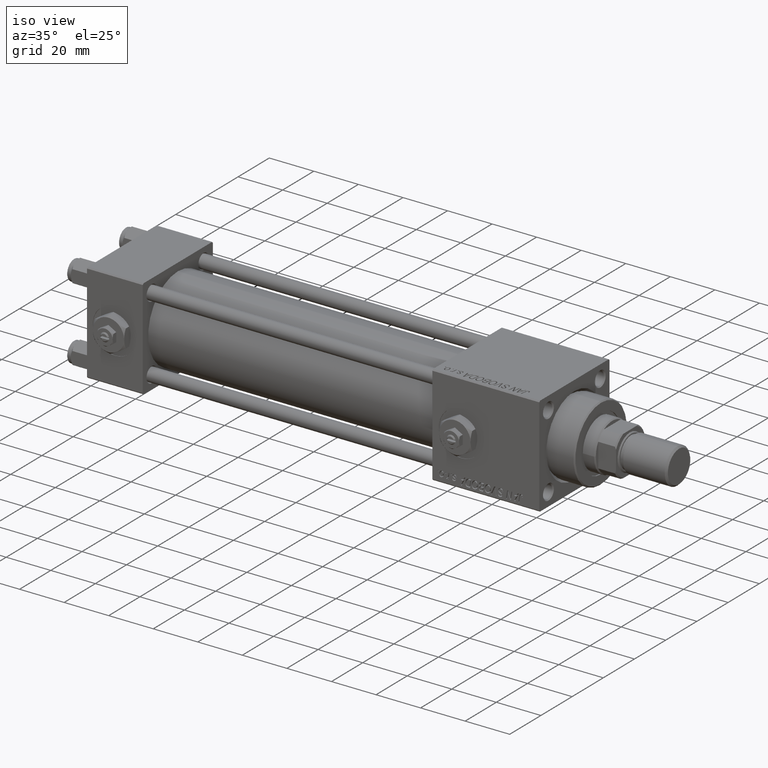
[diagram: clean part render]
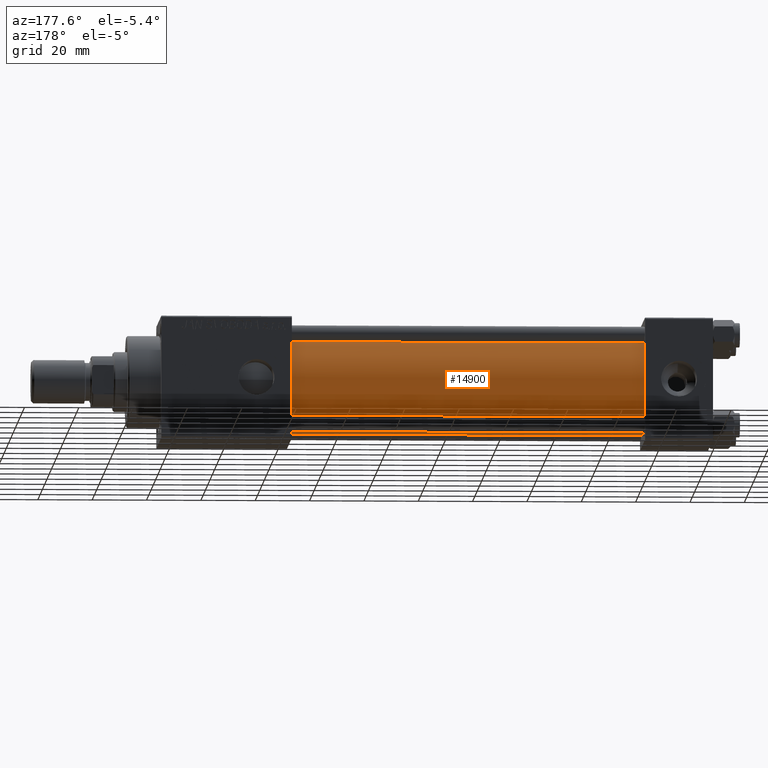
[diagram: tour spotlight — one face highlighted and labeled with its STEP entity id]
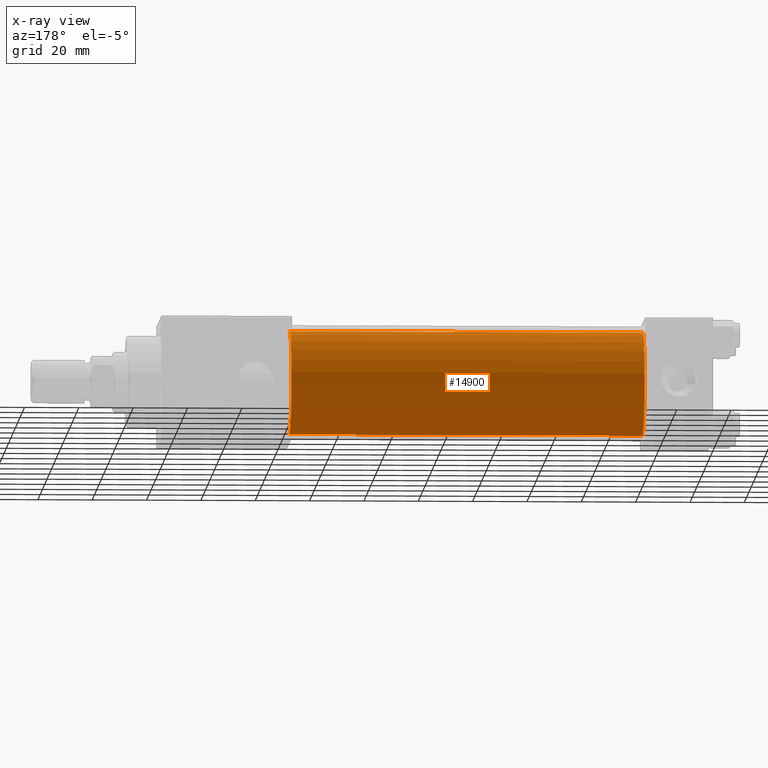
[diagram: x-ray of the same camera — body ghosted, this tour face saturated]
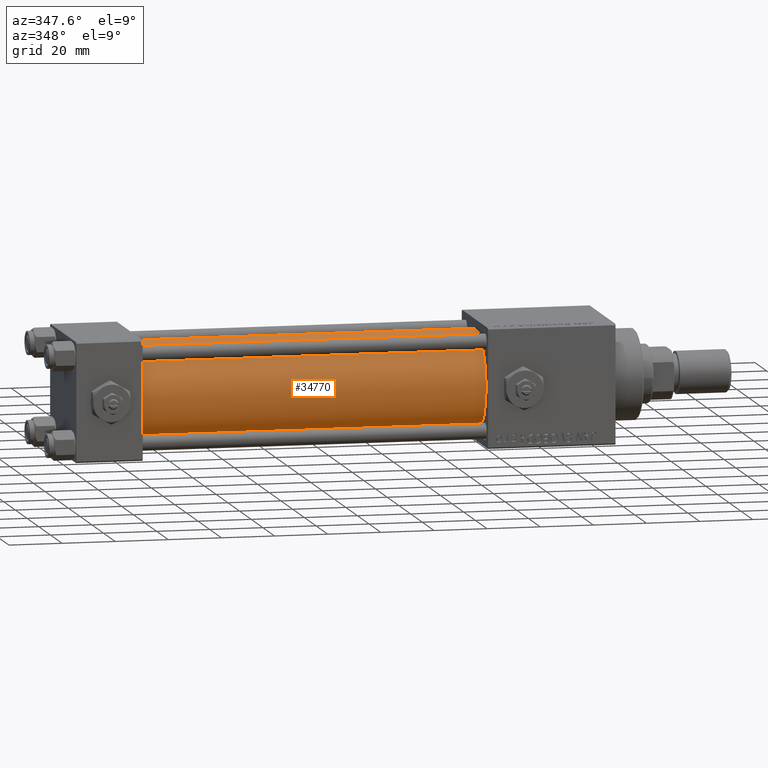
[diagram: tour spotlight — one face highlighted and labeled with its STEP entity id]
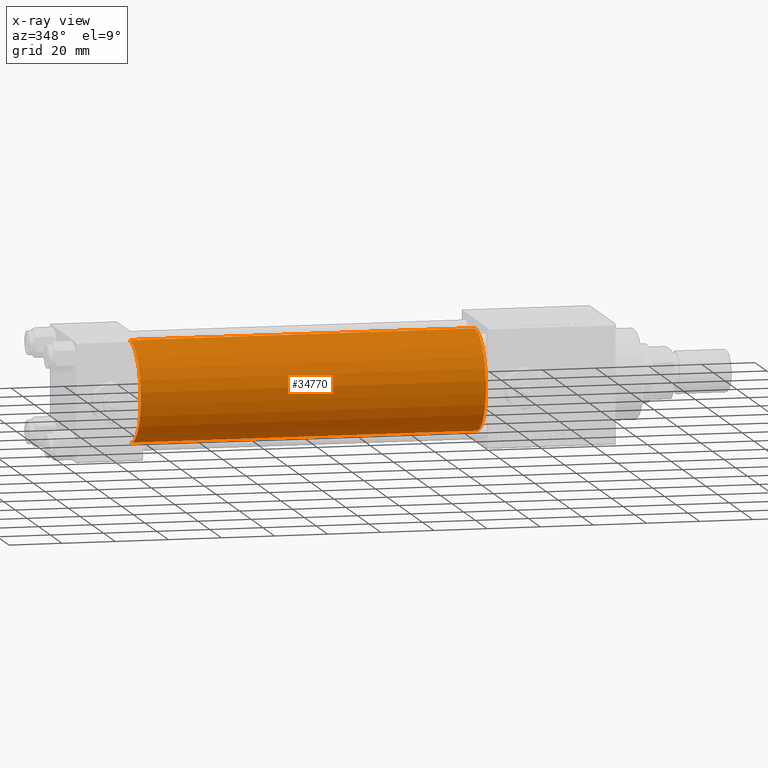
[diagram: x-ray of the same camera — body ghosted, this tour face saturated]
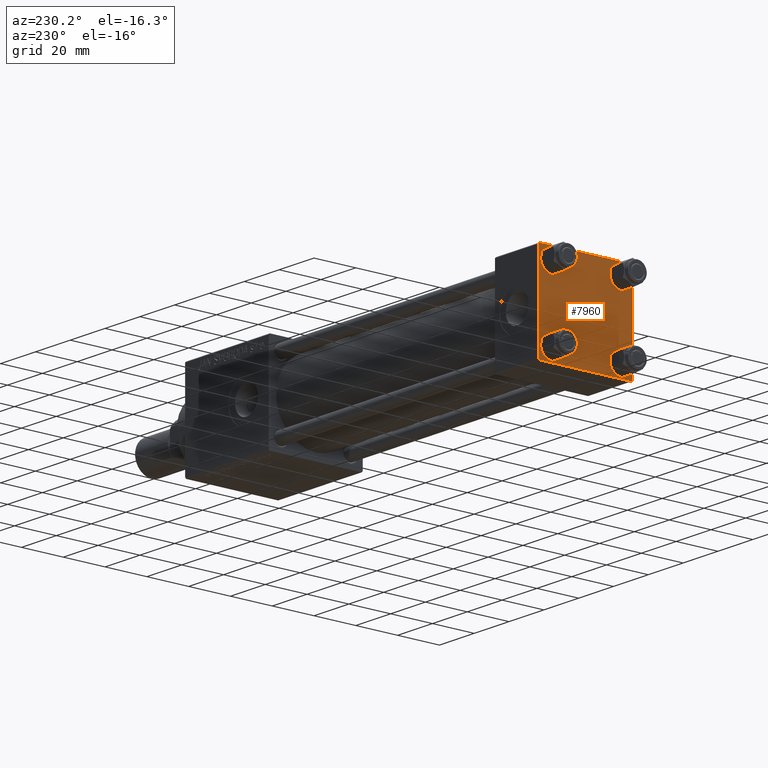
[diagram: tour spotlight — one face highlighted and labeled with its STEP entity id]
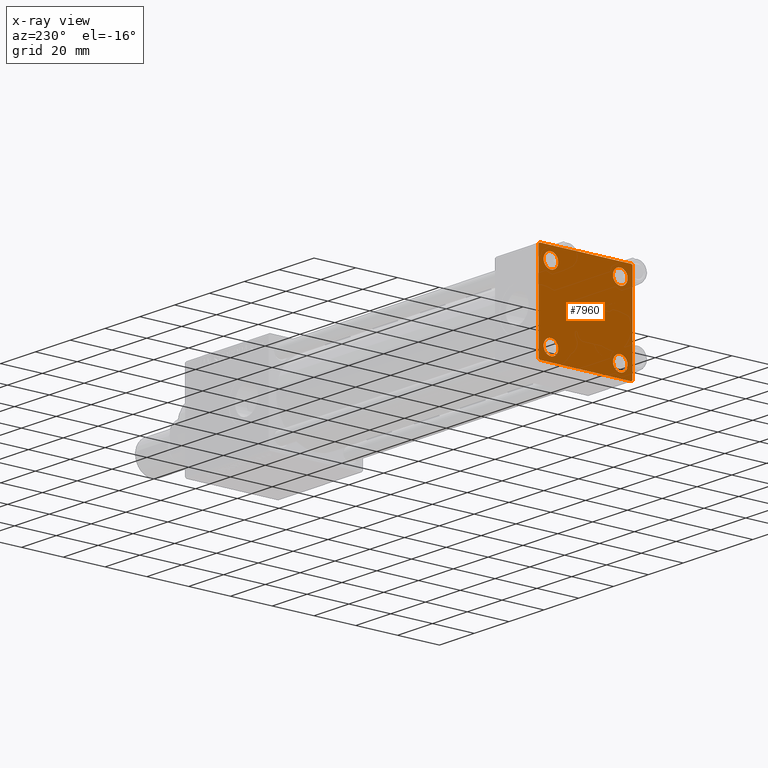
[diagram: x-ray of the same camera — body ghosted, this tour face saturated]
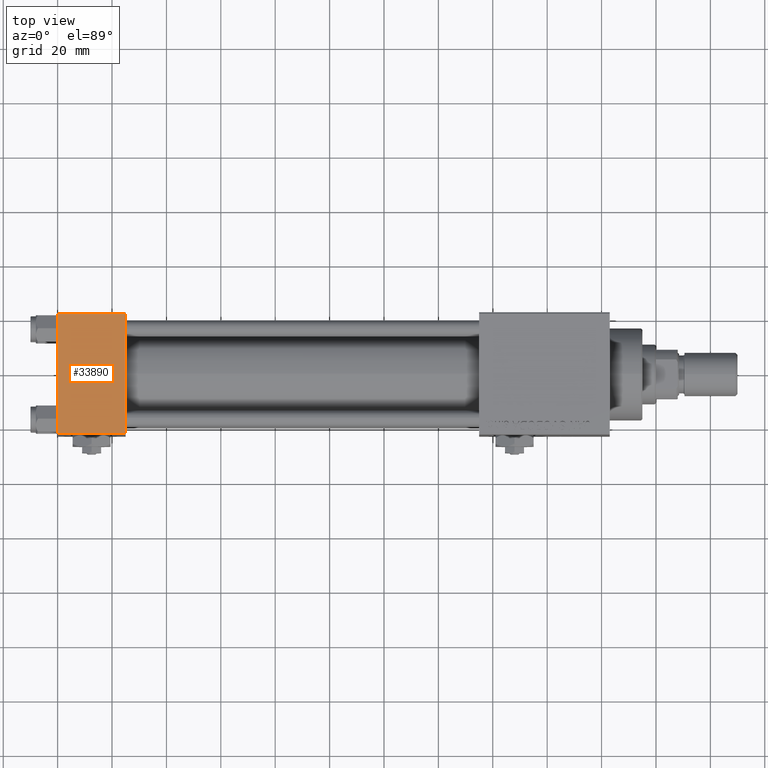
[diagram: tour spotlight — one face highlighted and labeled with its STEP entity id]
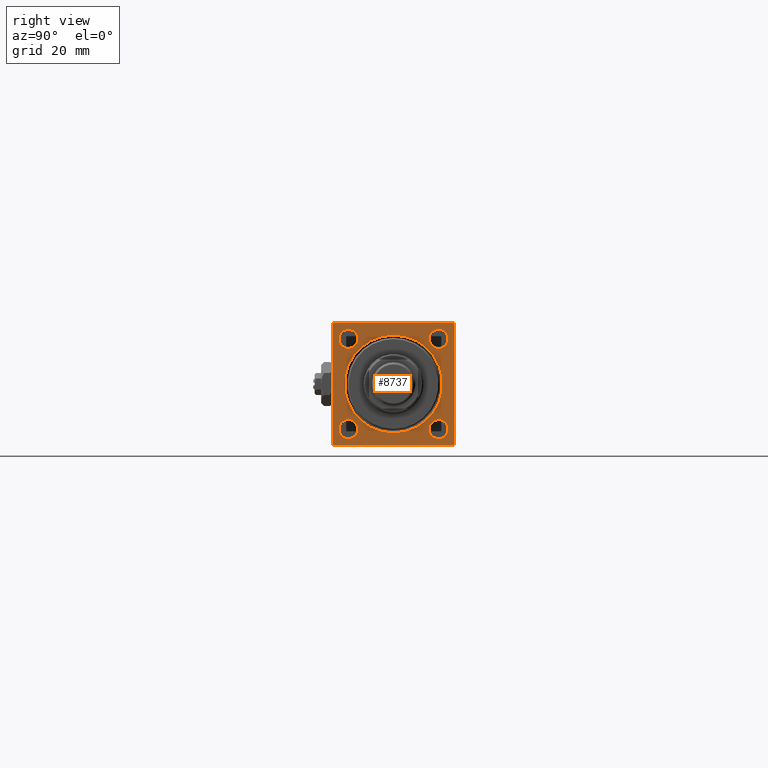
[diagram: tour spotlight — one face highlighted and labeled with its STEP entity id]
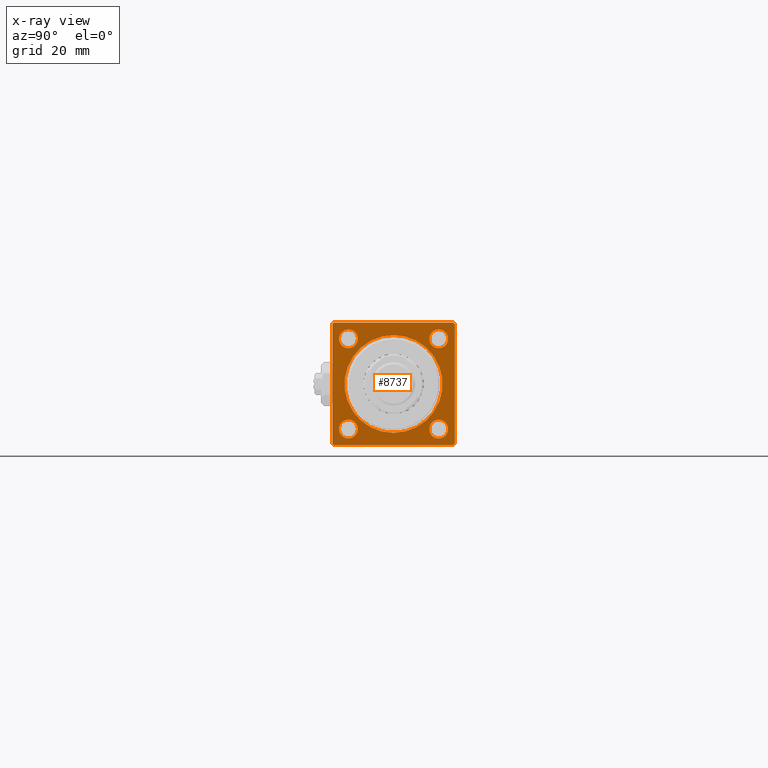
[diagram: x-ray of the same camera — body ghosted, this tour face saturated]
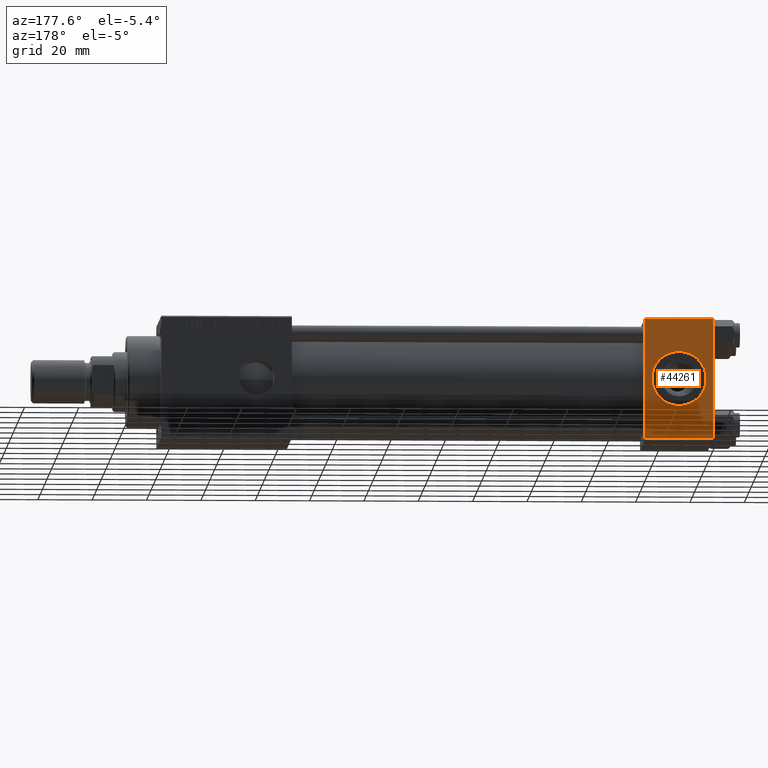
[diagram: tour spotlight — one face highlighted and labeled with its STEP entity id]
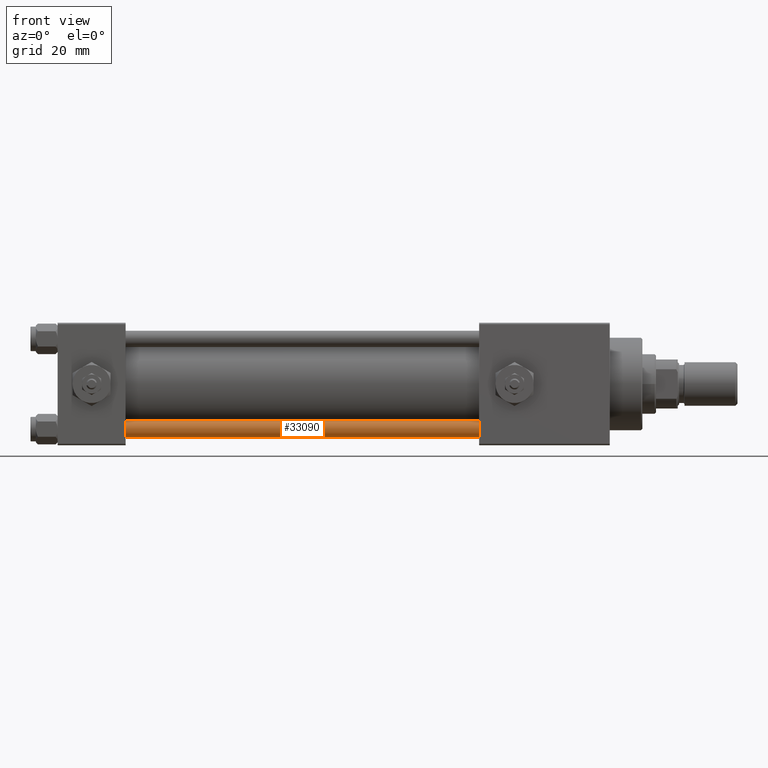
[diagram: tour spotlight — one face highlighted and labeled with its STEP entity id]
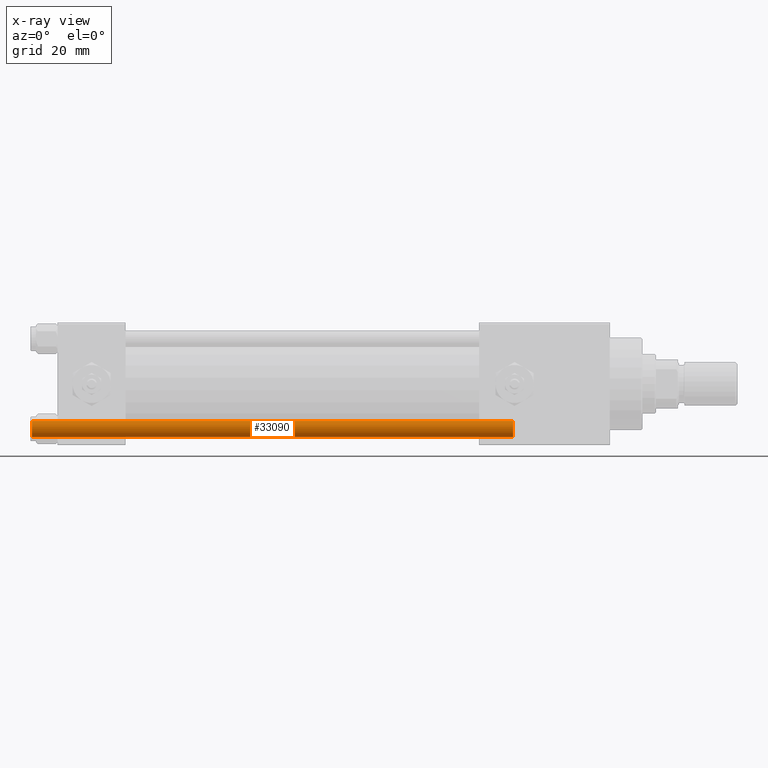
[diagram: x-ray of the same camera — body ghosted, this tour face saturated]
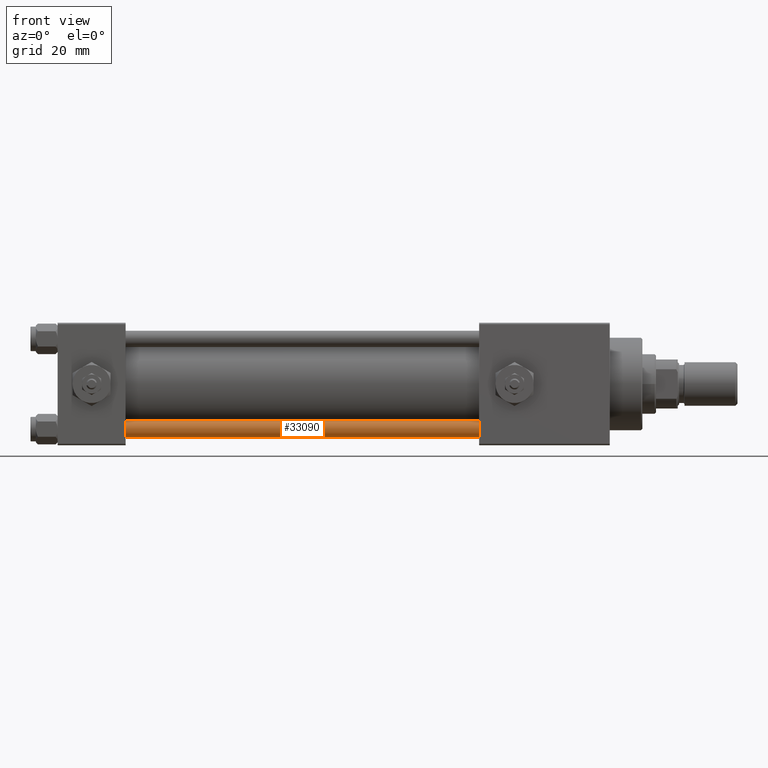
[diagram: tour spotlight — one face highlighted and labeled with its STEP entity id]
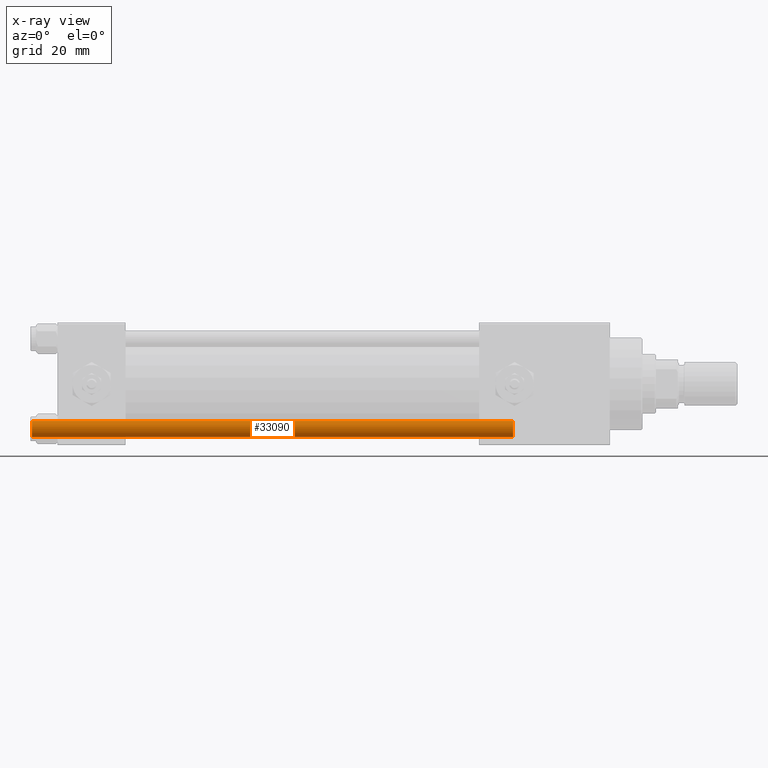
[diagram: x-ray of the same camera — body ghosted, this tour face saturated]
A machine part: a face-by-face anatomy tour. The part has 1262 B-rep faces; the first image is the clean iso view, then the 8 largest visible faces are spotlighted one at a time (largest first), each with its STEP entity span.

Face 1 — auxiliary view, entity #14900. An x-ray twin of the same camera follows (body ghosted, this face saturated) — the face is partly hidden behind the body. In plain terms, the highlighted cylindrical surface (partial cylindrical patch) has radius 19 mm, axis along (-1, -0, -0).
Definition (entity closure, byte-faithful):
#85 = AXIS2_PLACEMENT_3D ( 'NONE', #44434, #16227, #7715 ) ;
#4461 = VERTEX_POINT ( 'NONE', #4507 ) ;
#4507 = CARTESIAN_POINT ( 'NONE',  ( 155.0000000000000000, -2.752562955852396712E-16, -19.00000000000000000 ) ) ;
#6038 = DIRECTION ( 'NONE',  ( -1.000000000000000000, -0.000000000000000000, -0.000000000000000000 ) ) ;
#7715 = DIRECTION ( 'NONE',  ( 0.000000000000000000, 0.000000000000000000, 1.000000000000000000 ) ) ;
#7952 = VERTEX_POINT ( 'NONE', #40207 ) ;
#8587 = ORIENTED_EDGE ( 'NONE', *, *, #23134, .T. ) ;
#9374 = VERTEX_POINT ( 'NONE', #42926 ) ;
#12213 = EDGE_LOOP ( 'NONE', ( #42013, #52071, #8587, #27853 ) ) ;
#12745 = DIRECTION ( 'NONE',  ( 0.000000000000000000, 0.000000000000000000, -1.000000000000000000 ) ) ;
#13572 = VECTOR ( 'NONE', #22670, 1000.000000000000000 ) ;
#14384 = AXIS2_PLACEMENT_3D ( 'NONE', #38131, #34147, #46385 ) ;
#14900 = ADVANCED_FACE ( 'NONE', ( #30146 ), #17375, .T. ) ;
#16015 = CARTESIAN_POINT ( 'NONE',  ( 24.99999999999999289, -2.602085213965210642E-15, 19.00000000000000000 ) ) ;
#16227 = DIRECTION ( 'NONE',  ( 1.000000000000000000, -0.000000000000000000, 0.000000000000000000 ) ) ;
#17177 = AXIS2_PLACEMENT_3D ( 'NONE', #24729, #36963, #12745 ) ;
#17375 = CYLINDRICAL_SURFACE ( 'NONE', #14384, 19.00000000000000000 ) ;
#18018 = CIRCLE ( 'NONE', #17177, 19.00000000000000000 ) ;
#20312 = VERTEX_POINT ( 'NONE', #16015 ) ;
#22670 = DIRECTION ( 'NONE',  ( -1.000000000000000000, -0.000000000000000000, -0.000000000000000000 ) ) ;
#23134 = EDGE_CURVE ( 'NONE', #9374, #20312, #29840, .T. ) ;
#24729 = CARTESIAN_POINT ( 'NONE',  ( 155.0000000000000000, -2.602085213965210642E-15, 0.000000000000000000 ) ) ;
#26269 = LINE ( 'NONE', #42498, #39441 ) ;
#27853 = ORIENTED_EDGE ( 'NONE', *, *, #50413, .F. ) ;
#29545 = EDGE_CURVE ( 'NONE', #4461, #7952, #18018, .T. ) ;
#29840 = CIRCLE ( 'NONE', #85, 19.00000000000000000 ) ;
#30146 = FACE_OUTER_BOUND ( 'NONE', #12213, .T. ) ;
#31725 = LINE ( 'NONE', #35181, #13572 ) ;
#33943 = EDGE_CURVE ( 'NONE', #4461, #9374, #26269, .T. ) ;
#34147 = DIRECTION ( 'NONE',  ( -1.000000000000000000, -0.000000000000000000, -0.000000000000000000 ) ) ;
#35181 = CARTESIAN_POINT ( 'NONE',  ( 155.0000000000000000, -2.602085213965210642E-15, 19.00000000000000000 ) ) ;
#36963 = DIRECTION ( 'NONE',  ( 1.000000000000000000, 0.000000000000000000, 0.000000000000000000 ) ) ;
#38131 = CARTESIAN_POINT ( 'NONE',  ( 155.0000000000000000, -2.602085213965210642E-15, 0.000000000000000000 ) ) ;
#39441 = VECTOR ( 'NONE', #6038, 1000.000000000000000 ) ;
#40207 = CARTESIAN_POINT ( 'NONE',  ( 155.0000000000000000, -2.602085213965210642E-15, 19.00000000000000000 ) ) ;
#42013 = ORIENTED_EDGE ( 'NONE', *, *, #29545, .F. ) ;
#42498 = CARTESIAN_POINT ( 'NONE',  ( 155.0000000000000000, -2.752562955852396712E-16, -19.00000000000000000 ) ) ;
#42926 = CARTESIAN_POINT ( 'NONE',  ( 24.99999999999999289, -2.752562955852396712E-16, -19.00000000000000000 ) ) ;
#44434 = CARTESIAN_POINT ( 'NONE',  ( 24.99999999999999289, -2.602085213965210642E-15, 0.000000000000000000 ) ) ;
#46385 = DIRECTION ( 'NONE',  ( 0.000000000000000000, 0.000000000000000000, 1.000000000000000000 ) ) ;
#50413 = EDGE_CURVE ( 'NONE', #7952, #20312, #31725, .T. ) ;
#52071 = ORIENTED_EDGE ( 'NONE', *, *, #33943, .T. ) ;

Face 2 — auxiliary view, entity #34770. An x-ray twin of the same camera follows (body ghosted, this face saturated) — the face is partly hidden behind the body. In plain terms, the highlighted cylindrical surface (partial cylindrical patch) has radius 19 mm, axis along (-1, -0, -0).
Definition (entity closure, byte-faithful):
#385 = AXIS2_PLACEMENT_3D ( 'NONE', #49616, #651, #44581 ) ;
#651 = DIRECTION ( 'NONE',  ( -1.000000000000000000, -0.000000000000000000, -0.000000000000000000 ) ) ;
#4187 = EDGE_LOOP ( 'NONE', ( #5502, #17599, #36821, #18349 ) ) ;
#4461 = VERTEX_POINT ( 'NONE', #4507 ) ;
#4507 = CARTESIAN_POINT ( 'NONE',  ( 155.0000000000000000, -2.752562955852396712E-16, -19.00000000000000000 ) ) ;
#5502 = ORIENTED_EDGE ( 'NONE', *, *, #33943, .F. ) ;
#6038 = DIRECTION ( 'NONE',  ( -1.000000000000000000, -0.000000000000000000, -0.000000000000000000 ) ) ;
#7952 = VERTEX_POINT ( 'NONE', #40207 ) ;
#8578 = AXIS2_PLACEMENT_3D ( 'NONE', #29931, #22215, #50432 ) ;
#9374 = VERTEX_POINT ( 'NONE', #42926 ) ;
#13572 = VECTOR ( 'NONE', #22670, 1000.000000000000000 ) ;
#15060 = AXIS2_PLACEMENT_3D ( 'NONE', #19428, #30886, #27674 ) ;
#16015 = CARTESIAN_POINT ( 'NONE',  ( 24.99999999999999289, -2.602085213965210642E-15, 19.00000000000000000 ) ) ;
#17599 = ORIENTED_EDGE ( 'NONE', *, *, #17813, .F. ) ;
#17813 = EDGE_CURVE ( 'NONE', #7952, #4461, #21292, .T. ) ;
#18349 = ORIENTED_EDGE ( 'NONE', *, *, #41156, .T. ) ;
#19428 = CARTESIAN_POINT ( 'NONE',  ( 24.99999999999999289, -2.602085213965210642E-15, 0.000000000000000000 ) ) ;
#20312 = VERTEX_POINT ( 'NONE', #16015 ) ;
#21292 = CIRCLE ( 'NONE', #8578, 19.00000000000000000 ) ;
#22215 = DIRECTION ( 'NONE',  ( 1.000000000000000000, 0.000000000000000000, 0.000000000000000000 ) ) ;
#22670 = DIRECTION ( 'NONE',  ( -1.000000000000000000, -0.000000000000000000, -0.000000000000000000 ) ) ;
#24631 = CYLINDRICAL_SURFACE ( 'NONE', #385, 19.00000000000000000 ) ;
#26269 = LINE ( 'NONE', #42498, #39441 ) ;
#27674 = DIRECTION ( 'NONE',  ( 0.000000000000000000, 0.000000000000000000, 1.000000000000000000 ) ) ;
#29931 = CARTESIAN_POINT ( 'NONE',  ( 155.0000000000000000, -2.602085213965210642E-15, 0.000000000000000000 ) ) ;
#30886 = DIRECTION ( 'NONE',  ( 1.000000000000000000, -0.000000000000000000, 0.000000000000000000 ) ) ;
#31725 = LINE ( 'NONE', #35181, #13572 ) ;
#33943 = EDGE_CURVE ( 'NONE', #4461, #9374, #26269, .T. ) ;
#34770 = ADVANCED_FACE ( 'NONE', ( #37125 ), #24631, .T. ) ;
#35181 = CARTESIAN_POINT ( 'NONE',  ( 155.0000000000000000, -2.602085213965210642E-15, 19.00000000000000000 ) ) ;
#36821 = ORIENTED_EDGE ( 'NONE', *, *, #50413, .T. ) ;
#37057 = CIRCLE ( 'NONE', #15060, 19.00000000000000000 ) ;
#37125 = FACE_OUTER_BOUND ( 'NONE', #4187, .T. ) ;
#39441 = VECTOR ( 'NONE', #6038, 1000.000000000000000 ) ;
#40207 = CARTESIAN_POINT ( 'NONE',  ( 155.0000000000000000, -2.602085213965210642E-15, 19.00000000000000000 ) ) ;
#41156 = EDGE_CURVE ( 'NONE', #20312, #9374, #37057, .T. ) ;
#42498 = CARTESIAN_POINT ( 'NONE',  ( 155.0000000000000000, -2.752562955852396712E-16, -19.00000000000000000 ) ) ;
#42926 = CARTESIAN_POINT ( 'NONE',  ( 24.99999999999999289, -2.752562955852396712E-16, -19.00000000000000000 ) ) ;
#44581 = DIRECTION ( 'NONE',  ( 0.000000000000000000, 0.000000000000000000, 1.000000000000000000 ) ) ;
#49616 = CARTESIAN_POINT ( 'NONE',  ( 155.0000000000000000, -2.602085213965210642E-15, 0.000000000000000000 ) ) ;
#50413 = EDGE_CURVE ( 'NONE', #7952, #20312, #31725, .T. ) ;
#50432 = DIRECTION ( 'NONE',  ( 0.000000000000000000, 0.000000000000000000, -1.000000000000000000 ) ) ;

Face 3 — auxiliary view, entity #7960. An x-ray twin of the same camera follows (body ghosted, this face saturated) — the face is partly hidden behind the body. In plain terms, the highlighted planar face has unit normal (-1, 0, 0).
Definition (entity closure, byte-faithful):
#75 = VECTOR ( 'NONE', #38165, 1000.000000000000000 ) ;
#342 = DIRECTION ( 'NONE',  ( 0.000000000000000000, 0.000000000000000000, 1.000000000000000000 ) ) ;
#369 = DIRECTION ( 'NONE',  ( 0.000000000000000000, -1.000000000000000000, -7.709882115452476934E-17 ) ) ;
#732 = ORIENTED_EDGE ( 'NONE', *, *, #27580, .T. ) ;
#853 = ORIENTED_EDGE ( 'NONE', *, *, #26945, .T. ) ;
#1427 = LINE ( 'NONE', #17158, #75 ) ;
#2073 = DIRECTION ( 'NONE',  ( -0.000000000000000000, -0.7071067811865426878, -0.7071067811865524577 ) ) ;
#2944 = CARTESIAN_POINT ( 'NONE',  ( 0.000000000000000000, 0.000000000000000000, 0.000000000000000000 ) ) ;
#3340 = AXIS2_PLACEMENT_3D ( 'NONE', #28631, #25156, #21160 ) ;
#3453 = VERTEX_POINT ( 'NONE', #24849 ) ;
#3712 = CARTESIAN_POINT ( 'NONE',  ( 0.000000000000000000, 21.99999999999999289, 22.50000000000000355 ) ) ;
#3775 = LINE ( 'NONE', #43702, #32563 ) ;
#3777 = CARTESIAN_POINT ( 'NONE',  ( 0.000000000000000000, -16.59999999999999076, 13.10000000000001030 ) ) ;
#5757 = DIRECTION ( 'NONE',  ( 0.000000000000000000, 0.7071067811865474617, -0.7071067811865474617 ) ) ;
#5898 = CIRCLE ( 'NONE', #52630, 3.499999999999996003 ) ;
#5910 = VECTOR ( 'NONE', #369, 1000.000000000000000 ) ;
#6080 = LINE ( 'NONE', #35088, #45079 ) ;
#7023 = VERTEX_POINT ( 'NONE', #30371 ) ;
#7519 = DIRECTION ( 'NONE',  ( -0.000000000000000000, 0.7071067811865525687, 0.7071067811865425767 ) ) ;
#7960 = ADVANCED_FACE ( 'NONE', ( #19972, #35426, #47665, #15722, #39418 ), #35163, .T. ) ;
#9157 = LINE ( 'NONE', #25379, #5910 ) ;
#10374 = LINE ( 'NONE', #51604, #42057 ) ;
#10895 = CARTESIAN_POINT ( 'NONE',  ( 0.000000000000000000, 22.50000000000000000, 22.50000000000000355 ) ) ;
#11528 = EDGE_CURVE ( 'NONE', #26114, #7023, #17817, .T. ) ;
#11675 = DIRECTION ( 'NONE',  ( 0.000000000000000000, 0.000000000000000000, -1.000000000000000000 ) ) ;
#12044 = EDGE_LOOP ( 'NONE', ( #48130, #20227 ) ) ;
#12204 = LINE ( 'NONE', #24443, #28473 ) ;
#12272 = EDGE_CURVE ( 'NONE', #41691, #25873, #41519, .T. ) ;
#14306 = EDGE_CURVE ( 'NONE', #44782, #20568, #9157, .T. ) ;
#14578 = DIRECTION ( 'NONE',  ( 0.000000000000000000, 0.000000000000000000, 1.000000000000000000 ) ) ;
#15722 = FACE_BOUND ( 'NONE', #35476, .T. ) ;
#16066 = CARTESIAN_POINT ( 'NONE',  ( 0.000000000000000000, 16.59999999999999787, -16.60000000000000497 ) ) ;
#16649 = EDGE_CURVE ( 'NONE', #7023, #51586, #6080, .T. ) ;
#17158 = CARTESIAN_POINT ( 'NONE',  ( 0.000000000000000000, -22.25000000000014566, -22.24999999999984013 ) ) ;
#17817 = LINE ( 'NONE', #10895, #46568 ) ;
#18360 = CARTESIAN_POINT ( 'NONE',  ( 0.000000000000000000, -21.99999999999997868, 22.50000000000000000 ) ) ;
#18558 = AXIS2_PLACEMENT_3D ( 'NONE', #23729, #48996, #20263 ) ;
#18793 = CARTESIAN_POINT ( 'NONE',  ( 0.000000000000000000, -16.59999999999999076, -16.60000000000000853 ) ) ;
#18963 = CARTESIAN_POINT ( 'NONE',  ( 0.000000000000000000, -21.99999999999997158, -22.50000000000000711 ) ) ;
#18980 = ORIENTED_EDGE ( 'NONE', *, *, #48138, .T. ) ;
#19086 = CARTESIAN_POINT ( 'NONE',  ( 0.000000000000000000, 22.50000000000000000, 21.99999999999999645 ) ) ;
#19404 = AXIS2_PLACEMENT_3D ( 'NONE', #2944, #52182, #23975 ) ;
#19972 = FACE_BOUND ( 'NONE', #12044, .T. ) ;
#20227 = ORIENTED_EDGE ( 'NONE', *, *, #12272, .T. ) ;
#20263 = DIRECTION ( 'NONE',  ( 0.000000000000000000, 0.000000000000000000, 1.000000000000000000 ) ) ;
#20278 = VERTEX_POINT ( 'NONE', #42505 ) ;
#20568 = VERTEX_POINT ( 'NONE', #18360 ) ;
#20963 = EDGE_CURVE ( 'NONE', #50544, #3453, #39115, .T. ) ;
#21160 = DIRECTION ( 'NONE',  ( 0.000000000000000000, 0.000000000000000000, 1.000000000000000000 ) ) ;
#21333 = CARTESIAN_POINT ( 'NONE',  ( 0.000000000000000000, -16.59999999999999076, -13.10000000000001030 ) ) ;
#21423 = ORIENTED_EDGE ( 'NONE', *, *, #35568, .F. ) ;
#22270 = ORIENTED_EDGE ( 'NONE', *, *, #20963, .T. ) ;
#23196 = AXIS2_PLACEMENT_3D ( 'NONE', #27084, #51559, #43305 ) ;
#23729 = CARTESIAN_POINT ( 'NONE',  ( 0.000000000000000000, -16.59999999999999076, 16.60000000000000853 ) ) ;
#23750 = CIRCLE ( 'NONE', #3340, 3.499999999999996003 ) ;
#23975 = DIRECTION ( 'NONE',  ( -0.000000000000000000, 0.000000000000000000, 1.000000000000000000 ) ) ;
#24323 = CIRCLE ( 'NONE', #48148, 3.499999999999996003 ) ;
#24443 = CARTESIAN_POINT ( 'NONE',  ( 0.000000000000000000, -22.50000000000000000, 22.50000000000000000 ) ) ;
#24482 = AXIS2_PLACEMENT_3D ( 'NONE', #30889, #47117, #26888 ) ;
#24813 = DIRECTION ( 'NONE',  ( 0.000000000000000000, 0.000000000000000000, 1.000000000000000000 ) ) ;
#24849 = CARTESIAN_POINT ( 'NONE',  ( 0.000000000000000000, 16.59999999999999787, -20.10000000000000142 ) ) ;
#25156 = DIRECTION ( 'NONE',  ( 1.000000000000000000, -0.000000000000000000, 0.000000000000000000 ) ) ;
#25379 = CARTESIAN_POINT ( 'NONE',  ( 0.000000000000000000, 22.50000000000000000, 22.50000000000000355 ) ) ;
#25873 = VERTEX_POINT ( 'NONE', #43989 ) ;
#26114 = VERTEX_POINT ( 'NONE', #19086 ) ;
#26176 = CIRCLE ( 'NONE', #24482, 3.499999999999996003 ) ;
#26315 = EDGE_LOOP ( 'NONE', ( #35003, #47769, #39398, #36685, #21423, #732, #39994, #50799 ) ) ;
#26558 = CARTESIAN_POINT ( 'NONE',  ( 0.000000000000000000, 16.59999999999999787, -16.60000000000000497 ) ) ;
#26608 = DIRECTION ( 'NONE',  ( 0.000000000000000000, -1.000000000000000000, -2.312964634635742957E-16 ) ) ;
#26749 = VERTEX_POINT ( 'NONE', #27729 ) ;
#26888 = DIRECTION ( 'NONE',  ( 0.000000000000000000, 0.000000000000000000, 1.000000000000000000 ) ) ;
#26945 = EDGE_CURVE ( 'NONE', #38431, #52579, #27457, .T. ) ;
#27084 = CARTESIAN_POINT ( 'NONE',  ( 0.000000000000000000, -16.59999999999999076, -16.60000000000000853 ) ) ;
#27318 = EDGE_LOOP ( 'NONE', ( #853, #18980 ) ) ;
#27457 = CIRCLE ( 'NONE', #23196, 3.499999999999996003 ) ;
#27580 = EDGE_CURVE ( 'NONE', #20278, #20568, #3775, .T. ) ;
#27729 = CARTESIAN_POINT ( 'NONE',  ( 0.000000000000000000, 16.59999999999999787, 13.10000000000000675 ) ) ;
#27909 = VERTEX_POINT ( 'NONE', #39931 ) ;
#28473 = VECTOR ( 'NONE', #11675, 1000.000000000000000 ) ;
#28631 = CARTESIAN_POINT ( 'NONE',  ( 0.000000000000000000, -16.59999999999999076, 16.60000000000000853 ) ) ;
#28744 = ORIENTED_EDGE ( 'NONE', *, *, #49325, .T. ) ;
#29704 = CARTESIAN_POINT ( 'NONE',  ( 0.000000000000000000, 22.24999999999999645, 22.24999999999999645 ) ) ;
#29775 = VERTEX_POINT ( 'NONE', #52082 ) ;
#30371 = CARTESIAN_POINT ( 'NONE',  ( 0.000000000000000000, 22.50000000000000000, -21.99999999999996803 ) ) ;
#30889 = CARTESIAN_POINT ( 'NONE',  ( 0.000000000000000000, 16.59999999999999787, 16.60000000000000497 ) ) ;
#31634 = EDGE_CURVE ( 'NONE', #44782, #26114, #50733, .T. ) ;
#31751 = VECTOR ( 'NONE', #5757, 1000.000000000000114 ) ;
#32563 = VECTOR ( 'NONE', #7519, 999.9999999999998863 ) ;
#32798 = CARTESIAN_POINT ( 'NONE',  ( 0.000000000000000000, 16.59999999999999787, 16.60000000000000497 ) ) ;
#33801 = CARTESIAN_POINT ( 'NONE',  ( 0.000000000000000000, 16.59999999999999787, -13.10000000000000675 ) ) ;
#33888 = AXIS2_PLACEMENT_3D ( 'NONE', #18793, #34497, #51263 ) ;
#33899 = CARTESIAN_POINT ( 'NONE',  ( 0.000000000000000000, 21.99999999999999289, -22.49999999999999645 ) ) ;
#34304 = ORIENTED_EDGE ( 'NONE', *, *, #41800, .T. ) ;
#34497 = DIRECTION ( 'NONE',  ( 1.000000000000000000, -0.000000000000000000, 0.000000000000000000 ) ) ;
#35003 = ORIENTED_EDGE ( 'NONE', *, *, #11528, .T. ) ;
#35088 = CARTESIAN_POINT ( 'NONE',  ( 0.000000000000000000, 22.25000000000014566, -22.24999999999984013 ) ) ;
#35163 = PLANE ( 'NONE',  #19404 ) ;
#35426 = FACE_BOUND ( 'NONE', #27318, .T. ) ;
#35476 = EDGE_LOOP ( 'NONE', ( #34304, #39674 ) ) ;
#35568 = EDGE_CURVE ( 'NONE', #20278, #27909, #12204, .T. ) ;
#36303 = EDGE_CURVE ( 'NONE', #51586, #37444, #10374, .T. ) ;
#36685 = ORIENTED_EDGE ( 'NONE', *, *, #52499, .T. ) ;
#37444 = VERTEX_POINT ( 'NONE', #18963 ) ;
#38165 = DIRECTION ( 'NONE',  ( 0.000000000000000000, -0.7071067811865426878, 0.7071067811865524577 ) ) ;
#38431 = VERTEX_POINT ( 'NONE', #21333 ) ;
#39115 = CIRCLE ( 'NONE', #45056, 3.499999999999996003 ) ;
#39223 = CARTESIAN_POINT ( 'NONE',  ( 0.000000000000000000, -16.59999999999999076, -20.10000000000000497 ) ) ;
#39398 = ORIENTED_EDGE ( 'NONE', *, *, #36303, .T. ) ;
#39418 = FACE_OUTER_BOUND ( 'NONE', #26315, .T. ) ;
#39674 = ORIENTED_EDGE ( 'NONE', *, *, #46640, .T. ) ;
#39871 = CIRCLE ( 'NONE', #33888, 3.499999999999996003 ) ;
#39931 = CARTESIAN_POINT ( 'NONE',  ( 0.000000000000000000, -22.50000000000000000, -21.99999999999997158 ) ) ;
#39994 = ORIENTED_EDGE ( 'NONE', *, *, #14306, .F. ) ;
#41519 = CIRCLE ( 'NONE', #18558, 3.499999999999996003 ) ;
#41691 = VERTEX_POINT ( 'NONE', #3777 ) ;
#41800 = EDGE_CURVE ( 'NONE', #29775, #26749, #24323, .T. ) ;
#42057 = VECTOR ( 'NONE', #26608, 1000.000000000000000 ) ;
#42231 = EDGE_LOOP ( 'NONE', ( #22270, #28744 ) ) ;
#42505 = CARTESIAN_POINT ( 'NONE',  ( 0.000000000000000000, -22.50000000000000000, 22.00000000000000000 ) ) ;
#43305 = DIRECTION ( 'NONE',  ( 0.000000000000000000, 0.000000000000000000, 1.000000000000000000 ) ) ;
#43702 = CARTESIAN_POINT ( 'NONE',  ( -0.000000000000000000, -22.24999999999984013, 22.25000000000015277 ) ) ;
#43989 = CARTESIAN_POINT ( 'NONE',  ( 0.000000000000000000, -16.59999999999999076, 20.10000000000000853 ) ) ;
#44266 = DIRECTION ( 'NONE',  ( 1.000000000000000000, -0.000000000000000000, 0.000000000000000000 ) ) ;
#44764 = DIRECTION ( 'NONE',  ( 1.000000000000000000, -0.000000000000000000, 0.000000000000000000 ) ) ;
#44782 = VERTEX_POINT ( 'NONE', #3712 ) ;
#45056 = AXIS2_PLACEMENT_3D ( 'NONE', #26558, #51035, #14578 ) ;
#45079 = VECTOR ( 'NONE', #2073, 1000.000000000000000 ) ;
#46568 = VECTOR ( 'NONE', #46839, 1000.000000000000000 ) ;
#46640 = EDGE_CURVE ( 'NONE', #26749, #29775, #26176, .T. ) ;
#46839 = DIRECTION ( 'NONE',  ( 0.000000000000000000, 0.000000000000000000, -1.000000000000000000 ) ) ;
#47117 = DIRECTION ( 'NONE',  ( 1.000000000000000000, -0.000000000000000000, 0.000000000000000000 ) ) ;
#47665 = FACE_BOUND ( 'NONE', #42231, .T. ) ;
#47769 = ORIENTED_EDGE ( 'NONE', *, *, #16649, .T. ) ;
#48130 = ORIENTED_EDGE ( 'NONE', *, *, #49838, .T. ) ;
#48138 = EDGE_CURVE ( 'NONE', #52579, #38431, #39871, .T. ) ;
#48148 = AXIS2_PLACEMENT_3D ( 'NONE', #32798, #44764, #24813 ) ;
#48996 = DIRECTION ( 'NONE',  ( 1.000000000000000000, -0.000000000000000000, 0.000000000000000000 ) ) ;
#49325 = EDGE_CURVE ( 'NONE', #3453, #50544, #5898, .T. ) ;
#49838 = EDGE_CURVE ( 'NONE', #25873, #41691, #23750, .T. ) ;
#50544 = VERTEX_POINT ( 'NONE', #33801 ) ;
#50733 = LINE ( 'NONE', #29704, #31751 ) ;
#50799 = ORIENTED_EDGE ( 'NONE', *, *, #31634, .T. ) ;
#51035 = DIRECTION ( 'NONE',  ( 1.000000000000000000, -0.000000000000000000, 0.000000000000000000 ) ) ;
#51263 = DIRECTION ( 'NONE',  ( 0.000000000000000000, 0.000000000000000000, 1.000000000000000000 ) ) ;
#51559 = DIRECTION ( 'NONE',  ( 1.000000000000000000, -0.000000000000000000, 0.000000000000000000 ) ) ;
#51586 = VERTEX_POINT ( 'NONE', #33899 ) ;
#51604 = CARTESIAN_POINT ( 'NONE',  ( 0.000000000000000000, 22.50000000000000000, -22.49999999999999645 ) ) ;
#52082 = CARTESIAN_POINT ( 'NONE',  ( 0.000000000000000000, 16.59999999999999787, 20.10000000000000142 ) ) ;
#52182 = DIRECTION ( 'NONE',  ( -1.000000000000000000, 0.000000000000000000, -0.000000000000000000 ) ) ;
#52499 = EDGE_CURVE ( 'NONE', #37444, #27909, #1427, .T. ) ;
#52579 = VERTEX_POINT ( 'NONE', #39223 ) ;
#52630 = AXIS2_PLACEMENT_3D ( 'NONE', #16066, #44266, #342 ) ;

Face 4 — top view, entity #33890. In plain terms, the highlighted planar face has unit normal (0, 0, -1).
Definition (entity closure, byte-faithful):
#292 = EDGE_CURVE ( 'NONE', #39068, #13484, #31573, .T. ) ;
#369 = DIRECTION ( 'NONE',  ( 0.000000000000000000, -1.000000000000000000, -7.709882115452476934E-17 ) ) ;
#2590 = VECTOR ( 'NONE', #45869, 1000.000000000000000 ) ;
#2833 = CARTESIAN_POINT ( 'NONE',  ( 25.00000000000000000, 22.50000000000000000, 22.50000000000000355 ) ) ;
#3712 = CARTESIAN_POINT ( 'NONE',  ( 0.000000000000000000, 21.99999999999999289, 22.50000000000000355 ) ) ;
#4938 = CARTESIAN_POINT ( 'NONE',  ( 25.00000000000000000, -21.99999999999999289, 22.50000000000000000 ) ) ;
#5910 = VECTOR ( 'NONE', #369, 1000.000000000000000 ) ;
#9157 = LINE ( 'NONE', #25379, #5910 ) ;
#9240 = CARTESIAN_POINT ( 'NONE',  ( 25.00000000000000000, 21.99999999999999289, 22.50000000000000355 ) ) ;
#11470 = VECTOR ( 'NONE', #39550, 1000.000000000000000 ) ;
#12938 = VECTOR ( 'NONE', #48608, 1000.000000000000000 ) ;
#13484 = VERTEX_POINT ( 'NONE', #34018 ) ;
#13939 = CARTESIAN_POINT ( 'NONE',  ( 0.000000000000000000, 21.99999999999999289, 22.50000000000000355 ) ) ;
#14306 = EDGE_CURVE ( 'NONE', #44782, #20568, #9157, .T. ) ;
#14593 = ORIENTED_EDGE ( 'NONE', *, *, #22176, .T. ) ;
#15142 = EDGE_LOOP ( 'NONE', ( #37141, #38516, #35106, #14593 ) ) ;
#18360 = CARTESIAN_POINT ( 'NONE',  ( 0.000000000000000000, -21.99999999999997868, 22.50000000000000000 ) ) ;
#19075 = DIRECTION ( 'NONE',  ( 0.000000000000000000, 7.709882115452476934E-17, -1.000000000000000000 ) ) ;
#20568 = VERTEX_POINT ( 'NONE', #18360 ) ;
#22176 = EDGE_CURVE ( 'NONE', #39068, #44782, #41367, .T. ) ;
#25379 = CARTESIAN_POINT ( 'NONE',  ( 0.000000000000000000, 22.50000000000000000, 22.50000000000000355 ) ) ;
#29884 = EDGE_CURVE ( 'NONE', #20568, #13484, #37152, .T. ) ;
#31573 = LINE ( 'NONE', #32094, #11470 ) ;
#32094 = CARTESIAN_POINT ( 'NONE',  ( 25.00000000000000000, 22.50000000000000000, 22.50000000000000355 ) ) ;
#33890 = ADVANCED_FACE ( 'NONE', ( #43285 ), #39302, .F. ) ;
#34018 = CARTESIAN_POINT ( 'NONE',  ( 25.00000000000000000, -21.99999999999997868, 22.50000000000000000 ) ) ;
#35106 = ORIENTED_EDGE ( 'NONE', *, *, #292, .F. ) ;
#35305 = DIRECTION ( 'NONE',  ( 0.000000000000000000, 1.000000000000000000, 7.709882115452476934E-17 ) ) ;
#37141 = ORIENTED_EDGE ( 'NONE', *, *, #14306, .T. ) ;
#37152 = LINE ( 'NONE', #4938, #12938 ) ;
#38516 = ORIENTED_EDGE ( 'NONE', *, *, #29884, .T. ) ;
#39068 = VERTEX_POINT ( 'NONE', #9240 ) ;
#39302 = PLANE ( 'NONE',  #50498 ) ;
#39550 = DIRECTION ( 'NONE',  ( 0.000000000000000000, -1.000000000000000000, -7.709882115452476934E-17 ) ) ;
#41367 = LINE ( 'NONE', #13939, #2590 ) ;
#43285 = FACE_OUTER_BOUND ( 'NONE', #15142, .T. ) ;
#44782 = VERTEX_POINT ( 'NONE', #3712 ) ;
#45869 = DIRECTION ( 'NONE',  ( -1.000000000000000000, 0.000000000000000000, 0.000000000000000000 ) ) ;
#48608 = DIRECTION ( 'NONE',  ( 1.000000000000000000, 0.000000000000000000, 0.000000000000000000 ) ) ;
#50498 = AXIS2_PLACEMENT_3D ( 'NONE', #2833, #19075, #35305 ) ;

Face 5 — right view, entity #8737. An x-ray twin of the same camera follows (body ghosted, this face saturated) — the face is partly hidden behind the body. In plain terms, the highlighted planar face has unit normal (-1, 0, 0).
Definition (entity closure, byte-faithful):
#1682 = DIRECTION ( 'NONE',  ( 0.000000000000000000, -1.000000000000000000, -2.312964634635742957E-16 ) ) ;
#1697 = DIRECTION ( 'NONE',  ( 0.000000000000000000, 0.000000000000000000, 1.000000000000000000 ) ) ;
#1959 = DIRECTION ( 'NONE',  ( 0.000000000000000000, 0.000000000000000000, 1.000000000000000000 ) ) ;
#2051 = CARTESIAN_POINT ( 'NONE',  ( 203.0000000000000000, -22.49999999999999645, 21.99999999999999289 ) ) ;
#2894 = CARTESIAN_POINT ( 'NONE',  ( 203.0000000000000000, -16.60000000000000497, -20.10000000000000853 ) ) ;
#2949 = CARTESIAN_POINT ( 'NONE',  ( 203.0000000000000000, 0.000000000000000000, -17.99999999999998934 ) ) ;
#2976 = VERTEX_POINT ( 'NONE', #27211 ) ;
#3156 = EDGE_CURVE ( 'NONE', #20378, #42488, #14998, .T. ) ;
#3593 = DIRECTION ( 'NONE',  ( 0.000000000000000000, 0.000000000000000000, 1.000000000000000000 ) ) ;
#4563 = DIRECTION ( 'NONE',  ( -1.000000000000000000, 0.000000000000000000, -0.000000000000000000 ) ) ;
#4577 = CARTESIAN_POINT ( 'NONE',  ( 203.0000000000000000, -21.99999999999995381, -22.50000000000000000 ) ) ;
#5060 = ORIENTED_EDGE ( 'NONE', *, *, #3156, .T. ) ;
#5218 = VERTEX_POINT ( 'NONE', #4577 ) ;
#5376 = DIRECTION ( 'NONE',  ( 0.000000000000000000, 0.000000000000000000, 1.000000000000000000 ) ) ;
#5716 = EDGE_CURVE ( 'NONE', #36672, #35098, #18452, .T. ) ;
#5903 = CARTESIAN_POINT ( 'NONE',  ( 203.0000000000000000, 16.59999999999999787, 16.60000000000000497 ) ) ;
#6176 = VECTOR ( 'NONE', #51482, 1000.000000000000000 ) ;
#7017 = VERTEX_POINT ( 'NONE', #9627 ) ;
#7041 = CARTESIAN_POINT ( 'NONE',  ( 203.0000000000000000, -22.49999999999999645, 22.49999999999999289 ) ) ;
#7193 = CARTESIAN_POINT ( 'NONE',  ( 203.0000000000000000, -16.59999999999999787, 13.10000000000002096 ) ) ;
#7596 = DIRECTION ( 'NONE',  ( -1.000000000000000000, 0.000000000000000000, -0.000000000000000000 ) ) ;
#7881 = CARTESIAN_POINT ( 'NONE',  ( 203.0000000000000000, -16.59999999999999787, 20.09999999999997300 ) ) ;
#8014 = CARTESIAN_POINT ( 'NONE',  ( 203.0000000000000000, -16.60000000000000497, -16.60000000000000497 ) ) ;
#8335 = CARTESIAN_POINT ( 'NONE',  ( 203.0000000000000000, 0.000000000000000000, 0.000000000000000000 ) ) ;
#8571 = CARTESIAN_POINT ( 'NONE',  ( 203.0000000000000000, -22.49999999999999645, 21.99999999999999289 ) ) ;
#8737 = ADVANCED_FACE ( 'NONE', ( #37329, #49823, #45057, #28552, #33337, #9381 ), #44789, .F. ) ;
#9381 = FACE_OUTER_BOUND ( 'NONE', #36357, .T. ) ;
#9627 = CARTESIAN_POINT ( 'NONE',  ( 203.0000000000000000, 16.59999999999999787, 20.10000000000000853 ) ) ;
#9687 = CARTESIAN_POINT ( 'NONE',  ( 203.0000000000000000, 22.50000000000000355, 22.50000000000000355 ) ) ;
#10045 = EDGE_CURVE ( 'NONE', #7017, #34218, #47407, .T. ) ;
#10771 = LINE ( 'NONE', #7041, #6176 ) ;
#11067 = VERTEX_POINT ( 'NONE', #7881 ) ;
#11296 = EDGE_CURVE ( 'NONE', #44462, #33616, #22776, .T. ) ;
#12565 = LINE ( 'NONE', #28799, #46876 ) ;
#12591 = DIRECTION ( 'NONE',  ( -1.000000000000000000, 0.000000000000000000, -0.000000000000000000 ) ) ;
#12711 = DIRECTION ( 'NONE',  ( -1.000000000000000000, 0.000000000000000000, -0.000000000000000000 ) ) ;
#12823 = ORIENTED_EDGE ( 'NONE', *, *, #51537, .T. ) ;
#12829 = CIRCLE ( 'NONE', #14537, 3.499999999999975131 ) ;
#12913 = ORIENTED_EDGE ( 'NONE', *, *, #20387, .T. ) ;
#13112 = DIRECTION ( 'NONE',  ( -1.000000000000000000, 0.000000000000000000, -0.000000000000000000 ) ) ;
#13687 = CARTESIAN_POINT ( 'NONE',  ( 203.0000000000000000, 16.59999999999999787, 16.60000000000000497 ) ) ;
#13694 = DIRECTION ( 'NONE',  ( -1.000000000000000000, 0.000000000000000000, -0.000000000000000000 ) ) ;
#14537 = AXIS2_PLACEMENT_3D ( 'NONE', #40094, #47290, #27070 ) ;
#14998 = CIRCLE ( 'NONE', #31146, 3.500000000000003109 ) ;
#15323 = VECTOR ( 'NONE', #1682, 1000.000000000000000 ) ;
#15963 = DIRECTION ( 'NONE',  ( -1.000000000000000000, 0.000000000000000000, -0.000000000000000000 ) ) ;
#16315 = VERTEX_POINT ( 'NONE', #7193 ) ;
#16402 = CARTESIAN_POINT ( 'NONE',  ( 203.0000000000000000, 22.50000000000000355, -21.99999999999998224 ) ) ;
#16547 = DIRECTION ( 'NONE',  ( -0.000000000000000000, -0.7071067811865474617, -0.7071067811865474617 ) ) ;
#16682 = ORIENTED_EDGE ( 'NONE', *, *, #39486, .T. ) ;
#16780 = EDGE_LOOP ( 'NONE', ( #46329, #26050 ) ) ;
#17312 = LINE ( 'NONE', #49002, #22963 ) ;
#17431 = CARTESIAN_POINT ( 'NONE',  ( 203.0000000000000000, 22.50000000000000355, -21.99999999999999645 ) ) ;
#17658 = EDGE_CURVE ( 'NONE', #16315, #11067, #12829, .T. ) ;
#18452 = CIRCLE ( 'NONE', #28687, 17.99999999999998934 ) ;
#18748 = EDGE_CURVE ( 'NONE', #2976, #43012, #31267, .T. ) ;
#18947 = CARTESIAN_POINT ( 'NONE',  ( 203.0000000000000000, 16.59999999999999787, 13.10000000000000142 ) ) ;
#19004 = DIRECTION ( 'NONE',  ( 0.000000000000000000, 0.000000000000000000, 1.000000000000000000 ) ) ;
#20171 = AXIS2_PLACEMENT_3D ( 'NONE', #8335, #12591, #41076 ) ;
#20183 = VERTEX_POINT ( 'NONE', #51904 ) ;
#20378 = VERTEX_POINT ( 'NONE', #35981 ) ;
#20387 = EDGE_CURVE ( 'NONE', #20183, #5218, #17312, .T. ) ;
#20802 = DIRECTION ( 'NONE',  ( 0.000000000000000000, 0.000000000000000000, 1.000000000000000000 ) ) ;
#20835 = ORIENTED_EDGE ( 'NONE', *, *, #23801, .F. ) ;
#21020 = CIRCLE ( 'NONE', #27823, 3.500000000000003109 ) ;
#22152 = LINE ( 'NONE', #42899, #33343 ) ;
#22220 = LINE ( 'NONE', #17431, #49518 ) ;
#22351 = AXIS2_PLACEMENT_3D ( 'NONE', #25202, #12711, #49425 ) ;
#22460 = CARTESIAN_POINT ( 'NONE',  ( 203.0000000000000000, 0.000000000000000000, 0.000000000000000000 ) ) ;
#22533 = CIRCLE ( 'NONE', #48859, 17.99999999999998934 ) ;
#22776 = CIRCLE ( 'NONE', #24497, 3.500000000000003109 ) ;
#22779 = ORIENTED_EDGE ( 'NONE', *, *, #44775, .T. ) ;
#22963 = VECTOR ( 'NONE', #36506, 1000.000000000000000 ) ;
#23271 = CARTESIAN_POINT ( 'NONE',  ( 203.0000000000000000, 22.50000000000000355, 22.50000000000000355 ) ) ;
#23801 = EDGE_CURVE ( 'NONE', #29589, #5218, #12565, .T. ) ;
#24190 = AXIS2_PLACEMENT_3D ( 'NONE', #5903, #13112, #5376 ) ;
#24295 = VECTOR ( 'NONE', #16547, 1000.000000000000114 ) ;
#24497 = AXIS2_PLACEMENT_3D ( 'NONE', #8014, #51461, #19004 ) ;
#24543 = DIRECTION ( 'NONE',  ( 0.000000000000000000, -1.000000000000000000, -7.709882115452476934E-17 ) ) ;
#24630 = ORIENTED_EDGE ( 'NONE', *, *, #31437, .T. ) ;
#24946 = EDGE_LOOP ( 'NONE', ( #38577, #24630 ) ) ;
#25202 = CARTESIAN_POINT ( 'NONE',  ( 203.0000000000000000, -16.59999999999999787, 16.59999999999999787 ) ) ;
#26050 = ORIENTED_EDGE ( 'NONE', *, *, #10045, .T. ) ;
#26390 = EDGE_CURVE ( 'NONE', #46013, #20183, #10771, .T. ) ;
#27070 = DIRECTION ( 'NONE',  ( 0.000000000000000000, 0.000000000000000000, 1.000000000000000000 ) ) ;
#27211 = CARTESIAN_POINT ( 'NONE',  ( 203.0000000000000000, 22.50000000000000355, 22.00000000000000355 ) ) ;
#27743 = CIRCLE ( 'NONE', #41346, 3.500000000000003109 ) ;
#27823 = AXIS2_PLACEMENT_3D ( 'NONE', #40181, #15963, #28202 ) ;
#28202 = DIRECTION ( 'NONE',  ( 0.000000000000000000, 0.000000000000000000, 1.000000000000000000 ) ) ;
#28552 = FACE_BOUND ( 'NONE', #50740, .T. ) ;
#28687 = AXIS2_PLACEMENT_3D ( 'NONE', #44044, #7596, #3593 ) ;
#28715 = CARTESIAN_POINT ( 'NONE',  ( 203.0000000000000000, 22.00000000000000355, -22.49999999999999645 ) ) ;
#28799 = CARTESIAN_POINT ( 'NONE',  ( 203.0000000000000000, 22.50000000000000355, -22.49999999999999645 ) ) ;
#29090 = EDGE_CURVE ( 'NONE', #2976, #38913, #22152, .T. ) ;
#29589 = VERTEX_POINT ( 'NONE', #28715 ) ;
#29671 = DIRECTION ( 'NONE',  ( -0.000000000000000000, 0.7071067811865474617, 0.7071067811865474617 ) ) ;
#29707 = ORIENTED_EDGE ( 'NONE', *, *, #26390, .T. ) ;
#29989 = EDGE_CURVE ( 'NONE', #29589, #43012, #22220, .T. ) ;
#31094 = CARTESIAN_POINT ( 'NONE',  ( 203.0000000000000000, 16.59999999999999787, -20.10000000000000853 ) ) ;
#31146 = AXIS2_PLACEMENT_3D ( 'NONE', #41040, #4563, #20802 ) ;
#31267 = LINE ( 'NONE', #23271, #37515 ) ;
#31437 = EDGE_CURVE ( 'NONE', #11067, #16315, #40220, .T. ) ;
#31584 = CARTESIAN_POINT ( 'NONE',  ( 203.0000000000000000, 2.204364238465234244E-15, 17.99999999999998934 ) ) ;
#33337 = FACE_BOUND ( 'NONE', #46292, .T. ) ;
#33343 = VECTOR ( 'NONE', #51410, 1000.000000000000114 ) ;
#33616 = VERTEX_POINT ( 'NONE', #2894 ) ;
#34175 = DIRECTION ( 'NONE',  ( 0.000000000000000000, 0.000000000000000000, 1.000000000000000000 ) ) ;
#34218 = VERTEX_POINT ( 'NONE', #18947 ) ;
#34562 = CARTESIAN_POINT ( 'NONE',  ( 203.0000000000000000, 22.00000000000000355, 22.50000000000000355 ) ) ;
#35045 = EDGE_CURVE ( 'NONE', #34218, #7017, #36076, .T. ) ;
#35098 = VERTEX_POINT ( 'NONE', #2949 ) ;
#35698 = EDGE_CURVE ( 'NONE', #35098, #36672, #22533, .T. ) ;
#35981 = CARTESIAN_POINT ( 'NONE',  ( 203.0000000000000000, 16.59999999999999787, -13.10000000000000142 ) ) ;
#36076 = CIRCLE ( 'NONE', #24190, 3.500000000000003109 ) ;
#36357 = EDGE_LOOP ( 'NONE', ( #29707, #12913, #20835, #49700, #41855, #42734, #12823, #50623 ) ) ;
#36506 = DIRECTION ( 'NONE',  ( 0.000000000000000000, 0.7071067811865426878, -0.7071067811865524577 ) ) ;
#36672 = VERTEX_POINT ( 'NONE', #31584 ) ;
#36678 = DIRECTION ( 'NONE',  ( -1.000000000000000000, 0.000000000000000000, -0.000000000000000000 ) ) ;
#36744 = ORIENTED_EDGE ( 'NONE', *, *, #5716, .T. ) ;
#37329 = FACE_BOUND ( 'NONE', #16780, .T. ) ;
#37515 = VECTOR ( 'NONE', #39505, 1000.000000000000000 ) ;
#37638 = EDGE_CURVE ( 'NONE', #48317, #46013, #49789, .T. ) ;
#38158 = CARTESIAN_POINT ( 'NONE',  ( 203.0000000000000000, 16.59999999999999787, -16.60000000000000497 ) ) ;
#38577 = ORIENTED_EDGE ( 'NONE', *, *, #17658, .T. ) ;
#38913 = VERTEX_POINT ( 'NONE', #34562 ) ;
#39486 = EDGE_CURVE ( 'NONE', #42488, #20378, #27743, .T. ) ;
#39505 = DIRECTION ( 'NONE',  ( 0.000000000000000000, 0.000000000000000000, -1.000000000000000000 ) ) ;
#40094 = CARTESIAN_POINT ( 'NONE',  ( 203.0000000000000000, -16.59999999999999787, 16.59999999999999787 ) ) ;
#40181 = CARTESIAN_POINT ( 'NONE',  ( 203.0000000000000000, -16.60000000000000497, -16.60000000000000497 ) ) ;
#40220 = CIRCLE ( 'NONE', #22351, 3.499999999999975131 ) ;
#41040 = CARTESIAN_POINT ( 'NONE',  ( 203.0000000000000000, 16.59999999999999787, -16.60000000000000497 ) ) ;
#41076 = DIRECTION ( 'NONE',  ( -0.000000000000000000, 0.000000000000000000, 1.000000000000000000 ) ) ;
#41126 = CARTESIAN_POINT ( 'NONE',  ( 203.0000000000000000, -21.99999999999998224, 22.49999999999999289 ) ) ;
#41346 = AXIS2_PLACEMENT_3D ( 'NONE', #38158, #50408, #34175 ) ;
#41855 = ORIENTED_EDGE ( 'NONE', *, *, #18748, .F. ) ;
#42407 = LINE ( 'NONE', #9687, #15323 ) ;
#42488 = VERTEX_POINT ( 'NONE', #31094 ) ;
#42734 = ORIENTED_EDGE ( 'NONE', *, *, #29090, .T. ) ;
#42899 = CARTESIAN_POINT ( 'NONE',  ( 203.0000000000000000, 22.00000000000000355, 22.50000000000000355 ) ) ;
#43012 = VERTEX_POINT ( 'NONE', #16402 ) ;
#44044 = CARTESIAN_POINT ( 'NONE',  ( 203.0000000000000000, 0.000000000000000000, 0.000000000000000000 ) ) ;
#44462 = VERTEX_POINT ( 'NONE', #52208 ) ;
#44775 = EDGE_CURVE ( 'NONE', #33616, #44462, #21020, .T. ) ;
#44789 = PLANE ( 'NONE',  #20171 ) ;
#44933 = ORIENTED_EDGE ( 'NONE', *, *, #11296, .T. ) ;
#45057 = FACE_BOUND ( 'NONE', #52543, .T. ) ;
#46013 = VERTEX_POINT ( 'NONE', #2051 ) ;
#46292 = EDGE_LOOP ( 'NONE', ( #50829, #36744 ) ) ;
#46329 = ORIENTED_EDGE ( 'NONE', *, *, #35045, .T. ) ;
#46876 = VECTOR ( 'NONE', #24543, 1000.000000000000000 ) ;
#47290 = DIRECTION ( 'NONE',  ( -1.000000000000000000, 0.000000000000000000, -0.000000000000000000 ) ) ;
#47407 = CIRCLE ( 'NONE', #49069, 3.500000000000003109 ) ;
#48317 = VERTEX_POINT ( 'NONE', #41126 ) ;
#48859 = AXIS2_PLACEMENT_3D ( 'NONE', #22460, #13694, #1697 ) ;
#49002 = CARTESIAN_POINT ( 'NONE',  ( 203.0000000000000000, -21.99999999999996803, -22.50000000000000000 ) ) ;
#49069 = AXIS2_PLACEMENT_3D ( 'NONE', #13687, #36678, #1959 ) ;
#49425 = DIRECTION ( 'NONE',  ( 0.000000000000000000, 0.000000000000000000, 1.000000000000000000 ) ) ;
#49518 = VECTOR ( 'NONE', #29671, 1000.000000000000114 ) ;
#49700 = ORIENTED_EDGE ( 'NONE', *, *, #29989, .T. ) ;
#49789 = LINE ( 'NONE', #8571, #24295 ) ;
#49823 = FACE_BOUND ( 'NONE', #24946, .T. ) ;
#50408 = DIRECTION ( 'NONE',  ( -1.000000000000000000, 0.000000000000000000, -0.000000000000000000 ) ) ;
#50623 = ORIENTED_EDGE ( 'NONE', *, *, #37638, .T. ) ;
#50740 = EDGE_LOOP ( 'NONE', ( #16682, #5060 ) ) ;
#50829 = ORIENTED_EDGE ( 'NONE', *, *, #35698, .T. ) ;
#51410 = DIRECTION ( 'NONE',  ( 0.000000000000000000, -0.7071067811865474617, 0.7071067811865474617 ) ) ;
#51461 = DIRECTION ( 'NONE',  ( -1.000000000000000000, 0.000000000000000000, -0.000000000000000000 ) ) ;
#51482 = DIRECTION ( 'NONE',  ( 0.000000000000000000, 0.000000000000000000, -1.000000000000000000 ) ) ;
#51537 = EDGE_CURVE ( 'NONE', #38913, #48317, #42407, .T. ) ;
#51904 = CARTESIAN_POINT ( 'NONE',  ( 203.0000000000000000, -22.49999999999999645, -21.99999999999995026 ) ) ;
#52208 = CARTESIAN_POINT ( 'NONE',  ( 203.0000000000000000, -16.60000000000000497, -13.10000000000000142 ) ) ;
#52543 = EDGE_LOOP ( 'NONE', ( #22779, #44933 ) ) ;

Face 6 — auxiliary view, entity #44261. In plain terms, the highlighted planar face has unit normal (0, 1, 0).
Definition (entity closure, byte-faithful):
#536 = VECTOR ( 'NONE', #2871, 1000.000000000000000 ) ;
#1930 = CARTESIAN_POINT ( 'NONE',  ( 12.50000000000000000, 22.50000000000000000, 0.000000000000000000 ) ) ;
#1946 = LINE ( 'NONE', #9420, #3431 ) ;
#2871 = DIRECTION ( 'NONE',  ( 1.000000000000000000, 0.000000000000000000, 0.000000000000000000 ) ) ;
#3431 = VECTOR ( 'NONE', #5159, 1000.000000000000000 ) ;
#5159 = DIRECTION ( 'NONE',  ( 0.000000000000000000, 0.000000000000000000, -1.000000000000000000 ) ) ;
#7008 = VERTEX_POINT ( 'NONE', #26646 ) ;
#7023 = VERTEX_POINT ( 'NONE', #30371 ) ;
#8334 = VERTEX_POINT ( 'NONE', #43604 ) ;
#9420 = CARTESIAN_POINT ( 'NONE',  ( 25.00000000000000000, 22.50000000000000000, 22.50000000000000355 ) ) ;
#9924 = PLANE ( 'NONE',  #45623 ) ;
#10456 = DIRECTION ( 'NONE',  ( 0.000000000000000000, 0.000000000000000000, 1.000000000000000000 ) ) ;
#10829 = DIRECTION ( 'NONE',  ( -1.000000000000000000, 0.000000000000000000, 0.000000000000000000 ) ) ;
#10895 = CARTESIAN_POINT ( 'NONE',  ( 0.000000000000000000, 22.50000000000000000, 22.50000000000000355 ) ) ;
#11528 = EDGE_CURVE ( 'NONE', #26114, #7023, #17817, .T. ) ;
#11960 = CARTESIAN_POINT ( 'NONE',  ( 12.50000000000000000, 22.50000000000000000, 0.000000000000000000 ) ) ;
#13654 = FACE_BOUND ( 'NONE', #42544, .T. ) ;
#14958 = EDGE_CURVE ( 'NONE', #26987, #7008, #44131, .T. ) ;
#15427 = DIRECTION ( 'NONE',  ( 0.000000000000000000, 1.000000000000000000, 0.000000000000000000 ) ) ;
#17604 = EDGE_CURVE ( 'NONE', #8334, #7023, #26798, .T. ) ;
#17817 = LINE ( 'NONE', #10895, #46568 ) ;
#18010 = ORIENTED_EDGE ( 'NONE', *, *, #17604, .T. ) ;
#19086 = CARTESIAN_POINT ( 'NONE',  ( 0.000000000000000000, 22.50000000000000000, 21.99999999999999645 ) ) ;
#20408 = CARTESIAN_POINT ( 'NONE',  ( 12.50000000000000000, 22.50000000000000000, 9.999999999999996447 ) ) ;
#22147 = EDGE_CURVE ( 'NONE', #36142, #8334, #1946, .T. ) ;
#23210 = DIRECTION ( 'NONE',  ( 0.000000000000000000, 1.000000000000000000, 0.000000000000000000 ) ) ;
#24128 = ORIENTED_EDGE ( 'NONE', *, *, #22147, .T. ) ;
#25271 = ORIENTED_EDGE ( 'NONE', *, *, #14958, .F. ) ;
#26114 = VERTEX_POINT ( 'NONE', #19086 ) ;
#26646 = CARTESIAN_POINT ( 'NONE',  ( 12.50000000000000178, 22.50000000000000000, -9.999999999999996447 ) ) ;
#26798 = LINE ( 'NONE', #51285, #39156 ) ;
#26831 = LINE ( 'NONE', #44114, #536 ) ;
#26987 = VERTEX_POINT ( 'NONE', #20408 ) ;
#29477 = CIRCLE ( 'NONE', #35428, 9.999999999999996447 ) ;
#29611 = CARTESIAN_POINT ( 'NONE',  ( 25.00000000000000000, 22.50000000000000000, 22.50000000000000355 ) ) ;
#30371 = CARTESIAN_POINT ( 'NONE',  ( 0.000000000000000000, 22.50000000000000000, -21.99999999999996803 ) ) ;
#34401 = FACE_OUTER_BOUND ( 'NONE', #47583, .T. ) ;
#35428 = AXIS2_PLACEMENT_3D ( 'NONE', #11960, #15427, #48682 ) ;
#36142 = VERTEX_POINT ( 'NONE', #42039 ) ;
#39156 = VECTOR ( 'NONE', #10829, 1000.000000000000000 ) ;
#40023 = EDGE_CURVE ( 'NONE', #7008, #26987, #29477, .T. ) ;
#41592 = AXIS2_PLACEMENT_3D ( 'NONE', #1930, #23210, #10456 ) ;
#41757 = ORIENTED_EDGE ( 'NONE', *, *, #42429, .T. ) ;
#42039 = CARTESIAN_POINT ( 'NONE',  ( 25.00000000000000000, 22.50000000000000000, 21.99999999999999645 ) ) ;
#42429 = EDGE_CURVE ( 'NONE', #26114, #36142, #26831, .T. ) ;
#42544 = EDGE_LOOP ( 'NONE', ( #25271, #50540 ) ) ;
#43604 = CARTESIAN_POINT ( 'NONE',  ( 25.00000000000000000, 22.50000000000000000, -21.99999999999996803 ) ) ;
#44114 = CARTESIAN_POINT ( 'NONE',  ( 25.00000000000000000, 22.50000000000000000, 21.99999999999999645 ) ) ;
#44131 = CIRCLE ( 'NONE', #41592, 9.999999999999996447 ) ;
#44261 = ADVANCED_FACE ( 'NONE', ( #13654, #34401 ), #9924, .T. ) ;
#45623 = AXIS2_PLACEMENT_3D ( 'NONE', #29611, #50638, #45848 ) ;
#45848 = DIRECTION ( 'NONE',  ( 0.000000000000000000, -0.000000000000000000, 1.000000000000000000 ) ) ;
#46568 = VECTOR ( 'NONE', #46839, 1000.000000000000000 ) ;
#46839 = DIRECTION ( 'NONE',  ( 0.000000000000000000, 0.000000000000000000, -1.000000000000000000 ) ) ;
#47464 = ORIENTED_EDGE ( 'NONE', *, *, #11528, .F. ) ;
#47583 = EDGE_LOOP ( 'NONE', ( #24128, #18010, #47464, #41757 ) ) ;
#48682 = DIRECTION ( 'NONE',  ( 0.000000000000000000, 0.000000000000000000, 1.000000000000000000 ) ) ;
#50540 = ORIENTED_EDGE ( 'NONE', *, *, #40023, .F. ) ;
#50638 = DIRECTION ( 'NONE',  ( -0.000000000000000000, 1.000000000000000000, 0.000000000000000000 ) ) ;
#51285 = CARTESIAN_POINT ( 'NONE',  ( 25.00000000000000000, 22.50000000000000000, -21.99999999999998224 ) ) ;

Face 7 — front view, entity #33090. An x-ray twin of the same camera follows (body ghosted, this face saturated) — the face is partly hidden behind the body. In plain terms, the highlighted cylindrical surface (edge-blend (fillet) strip) has radius 3 mm, axis along (1, 0, -0).
Definition (entity closure, byte-faithful):
#71 = CARTESIAN_POINT ( 'NONE',  ( 0.000000000000000000, 0.000000000000000000, 178.0000000000000000 ) ) ;
#573 = VECTOR ( 'NONE', #20599, 1000.000000000000000 ) ;
#1229 = DIRECTION ( 'NONE',  ( 1.000000000000000000, 0.000000000000000000, 0.000000000000000000 ) ) ;
#1252 = CARTESIAN_POINT ( 'NONE',  ( -3.000000000000000444, 0.000000000000000000, 0.5000000000000281997 ) ) ;
#2218 = AXIS2_PLACEMENT_3D ( 'NONE', #28262, #3503, #31205 ) ;
#2994 = EDGE_CURVE ( 'NONE', #7682, #52328, #26887, .T. ) ;
#3503 = DIRECTION ( 'NONE',  ( 0.000000000000000000, 0.000000000000000000, -1.000000000000000000 ) ) ;
#4069 = CYLINDRICAL_SURFACE ( 'NONE', #52145, 3.000000000000000444 ) ;
#4075 = EDGE_CURVE ( 'NONE', #7682, #49680, #52022, .T. ) ;
#7682 = VERTEX_POINT ( 'NONE', #47983 ) ;
#8360 = LINE ( 'NONE', #32592, #573 ) ;
#10295 = VERTEX_POINT ( 'NONE', #21602 ) ;
#10365 = ORIENTED_EDGE ( 'NONE', *, *, #4075, .F. ) ;
#15035 = DIRECTION ( 'NONE',  ( -0.000000000000000000, -0.000000000000000000, -1.000000000000000000 ) ) ;
#15790 = DIRECTION ( 'NONE',  ( -1.000000000000000000, 0.000000000000000000, 0.000000000000000000 ) ) ;
#16916 = EDGE_LOOP ( 'NONE', ( #28307, #45510, #52374, #10365 ) ) ;
#20599 = DIRECTION ( 'NONE',  ( -0.000000000000000000, -0.000000000000000000, -1.000000000000000000 ) ) ;
#21093 = FACE_OUTER_BOUND ( 'NONE', #16916, .T. ) ;
#21602 = CARTESIAN_POINT ( 'NONE',  ( 3.000000000000000444, 3.673940397442060361E-16, 0.5000000000000281997 ) ) ;
#23314 = CARTESIAN_POINT ( 'NONE',  ( 3.000000000000000444, 3.673940397442060361E-16, 177.5000000000000000 ) ) ;
#26887 = CIRCLE ( 'NONE', #2218, 3.000000000000000444 ) ;
#27537 = CARTESIAN_POINT ( 'NONE',  ( -3.000000000000000444, 0.000000000000000000, 178.0000000000000000 ) ) ;
#28262 = CARTESIAN_POINT ( 'NONE',  ( 0.000000000000000000, 0.000000000000000000, 177.5000000000000000 ) ) ;
#28307 = ORIENTED_EDGE ( 'NONE', *, *, #2994, .T. ) ;
#29706 = DIRECTION ( 'NONE',  ( -0.000000000000000000, -0.000000000000000000, 1.000000000000000000 ) ) ;
#31205 = DIRECTION ( 'NONE',  ( 1.000000000000000000, 0.000000000000000000, 0.000000000000000000 ) ) ;
#32592 = CARTESIAN_POINT ( 'NONE',  ( 3.000000000000000444, 3.673940397442060361E-16, 178.0000000000000000 ) ) ;
#32896 = VECTOR ( 'NONE', #15035, 1000.000000000000000 ) ;
#33090 = ADVANCED_FACE ( 'NONE', ( #21093 ), #4069, .T. ) ;
#33200 = CARTESIAN_POINT ( 'NONE',  ( 0.000000000000000000, 0.000000000000000000, 0.5000000000000281997 ) ) ;
#36423 = CIRCLE ( 'NONE', #50003, 3.000000000000000444 ) ;
#40623 = EDGE_CURVE ( 'NONE', #52328, #10295, #8360, .T. ) ;
#45510 = ORIENTED_EDGE ( 'NONE', *, *, #40623, .T. ) ;
#47983 = CARTESIAN_POINT ( 'NONE',  ( -3.000000000000000444, 0.000000000000000000, 177.5000000000000000 ) ) ;
#48000 = EDGE_CURVE ( 'NONE', #10295, #49680, #36423, .T. ) ;
#49680 = VERTEX_POINT ( 'NONE', #1252 ) ;
#50003 = AXIS2_PLACEMENT_3D ( 'NONE', #33200, #29706, #1229 ) ;
#52022 = LINE ( 'NONE', #27537, #32896 ) ;
#52145 = AXIS2_PLACEMENT_3D ( 'NONE', #71, #52247, #15790 ) ;
#52247 = DIRECTION ( 'NONE',  ( -0.000000000000000000, -0.000000000000000000, -1.000000000000000000 ) ) ;
#52328 = VERTEX_POINT ( 'NONE', #23314 ) ;
#52374 = ORIENTED_EDGE ( 'NONE', *, *, #48000, .T. ) ;

Face 8 — front view, entity #33090. An x-ray twin of the same camera follows (body ghosted, this face saturated) — the face is partly hidden behind the body. In plain terms, the highlighted cylindrical surface (edge-blend (fillet) strip) has radius 3 mm, axis along (-1, -0, -0).
Definition (entity closure, byte-faithful):
#71 = CARTESIAN_POINT ( 'NONE',  ( 0.000000000000000000, 0.000000000000000000, 178.0000000000000000 ) ) ;
#573 = VECTOR ( 'NONE', #20599, 1000.000000000000000 ) ;
#1229 = DIRECTION ( 'NONE',  ( 1.000000000000000000, 0.000000000000000000, 0.000000000000000000 ) ) ;
#1252 = CARTESIAN_POINT ( 'NONE',  ( -3.000000000000000444, 0.000000000000000000, 0.5000000000000281997 ) ) ;
#2218 = AXIS2_PLACEMENT_3D ( 'NONE', #28262, #3503, #31205 ) ;
#2994 = EDGE_CURVE ( 'NONE', #7682, #52328, #26887, .T. ) ;
#3503 = DIRECTION ( 'NONE',  ( 0.000000000000000000, 0.000000000000000000, -1.000000000000000000 ) ) ;
#4069 = CYLINDRICAL_SURFACE ( 'NONE', #52145, 3.000000000000000444 ) ;
#4075 = EDGE_CURVE ( 'NONE', #7682, #49680, #52022, .T. ) ;
#7682 = VERTEX_POINT ( 'NONE', #47983 ) ;
#8360 = LINE ( 'NONE', #32592, #573 ) ;
#10295 = VERTEX_POINT ( 'NONE', #21602 ) ;
#10365 = ORIENTED_EDGE ( 'NONE', *, *, #4075, .F. ) ;
#15035 = DIRECTION ( 'NONE',  ( -0.000000000000000000, -0.000000000000000000, -1.000000000000000000 ) ) ;
#15790 = DIRECTION ( 'NONE',  ( -1.000000000000000000, 0.000000000000000000, 0.000000000000000000 ) ) ;
#16916 = EDGE_LOOP ( 'NONE', ( #28307, #45510, #52374, #10365 ) ) ;
#20599 = DIRECTION ( 'NONE',  ( -0.000000000000000000, -0.000000000000000000, -1.000000000000000000 ) ) ;
#21093 = FACE_OUTER_BOUND ( 'NONE', #16916, .T. ) ;
#21602 = CARTESIAN_POINT ( 'NONE',  ( 3.000000000000000444, 3.673940397442060361E-16, 0.5000000000000281997 ) ) ;
#23314 = CARTESIAN_POINT ( 'NONE',  ( 3.000000000000000444, 3.673940397442060361E-16, 177.5000000000000000 ) ) ;
#26887 = CIRCLE ( 'NONE', #2218, 3.000000000000000444 ) ;
#27537 = CARTESIAN_POINT ( 'NONE',  ( -3.000000000000000444, 0.000000000000000000, 178.0000000000000000 ) ) ;
#28262 = CARTESIAN_POINT ( 'NONE',  ( 0.000000000000000000, 0.000000000000000000, 177.5000000000000000 ) ) ;
#28307 = ORIENTED_EDGE ( 'NONE', *, *, #2994, .T. ) ;
#29706 = DIRECTION ( 'NONE',  ( -0.000000000000000000, -0.000000000000000000, 1.000000000000000000 ) ) ;
#31205 = DIRECTION ( 'NONE',  ( 1.000000000000000000, 0.000000000000000000, 0.000000000000000000 ) ) ;
#32592 = CARTESIAN_POINT ( 'NONE',  ( 3.000000000000000444, 3.673940397442060361E-16, 178.0000000000000000 ) ) ;
#32896 = VECTOR ( 'NONE', #15035, 1000.000000000000000 ) ;
#33090 = ADVANCED_FACE ( 'NONE', ( #21093 ), #4069, .T. ) ;
#33200 = CARTESIAN_POINT ( 'NONE',  ( 0.000000000000000000, 0.000000000000000000, 0.5000000000000281997 ) ) ;
#36423 = CIRCLE ( 'NONE', #50003, 3.000000000000000444 ) ;
#40623 = EDGE_CURVE ( 'NONE', #52328, #10295, #8360, .T. ) ;
#45510 = ORIENTED_EDGE ( 'NONE', *, *, #40623, .T. ) ;
#47983 = CARTESIAN_POINT ( 'NONE',  ( -3.000000000000000444, 0.000000000000000000, 177.5000000000000000 ) ) ;
#48000 = EDGE_CURVE ( 'NONE', #10295, #49680, #36423, .T. ) ;
#49680 = VERTEX_POINT ( 'NONE', #1252 ) ;
#50003 = AXIS2_PLACEMENT_3D ( 'NONE', #33200, #29706, #1229 ) ;
#52022 = LINE ( 'NONE', #27537, #32896 ) ;
#52145 = AXIS2_PLACEMENT_3D ( 'NONE', #71, #52247, #15790 ) ;
#52247 = DIRECTION ( 'NONE',  ( -0.000000000000000000, -0.000000000000000000, -1.000000000000000000 ) ) ;
#52328 = VERTEX_POINT ( 'NONE', #23314 ) ;
#52374 = ORIENTED_EDGE ( 'NONE', *, *, #48000, .T. ) ;